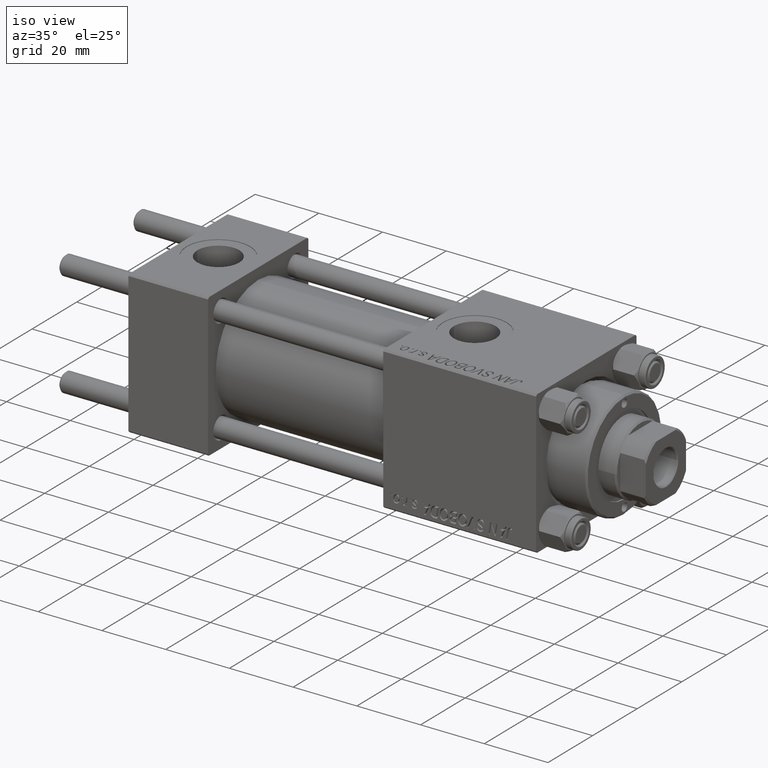
[diagram: clean part render]
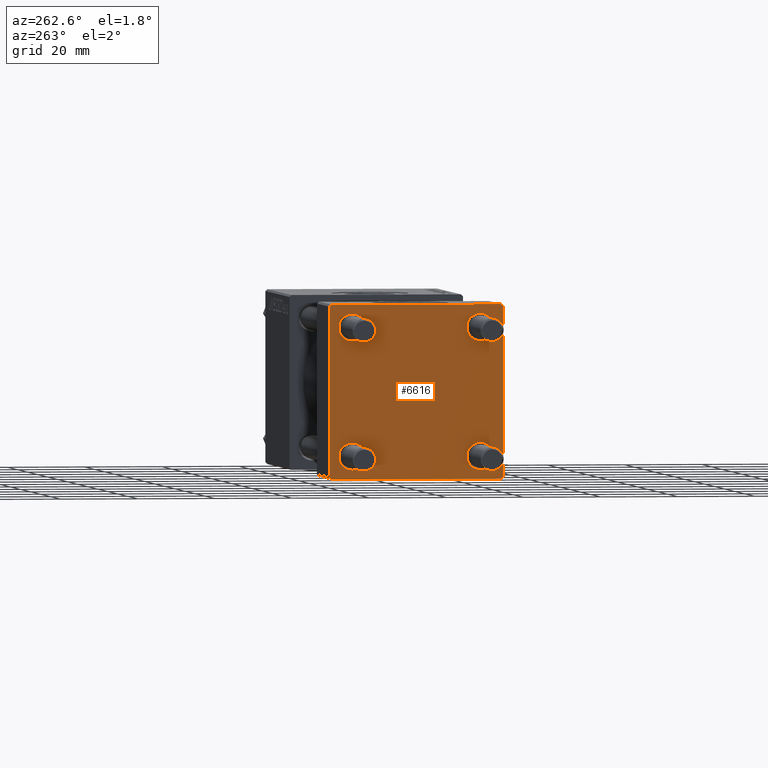
[diagram: tour spotlight — one face highlighted and labeled with its STEP entity id]
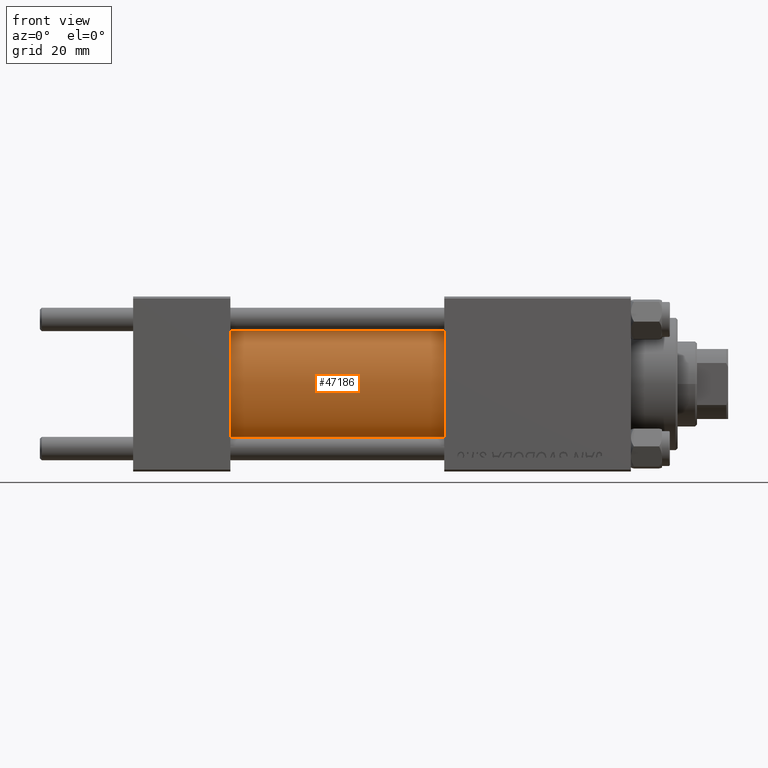
[diagram: tour spotlight — one face highlighted and labeled with its STEP entity id]
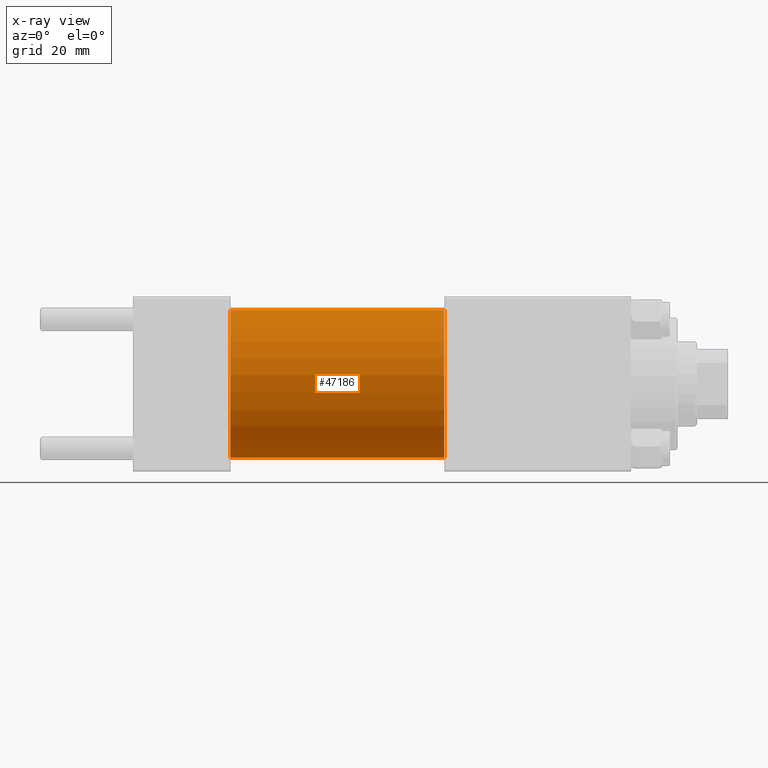
[diagram: x-ray of the same camera — body ghosted, this tour face saturated]
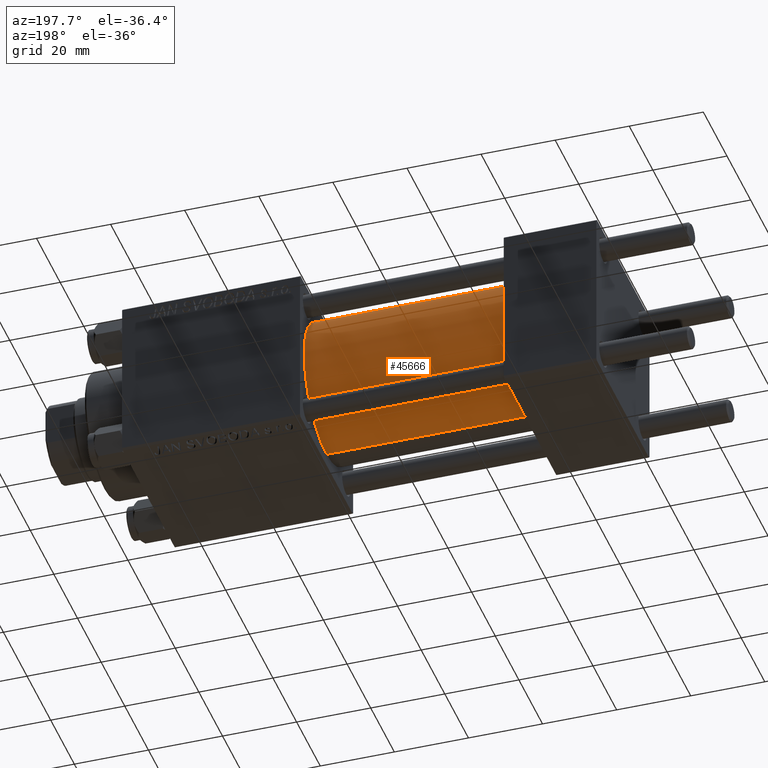
[diagram: tour spotlight — one face highlighted and labeled with its STEP entity id]
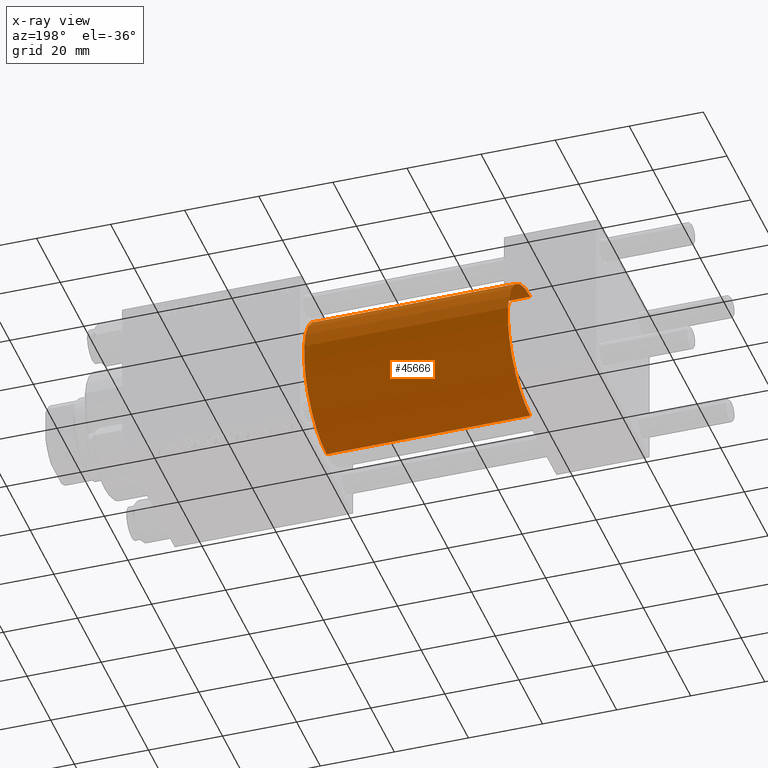
[diagram: x-ray of the same camera — body ghosted, this tour face saturated]
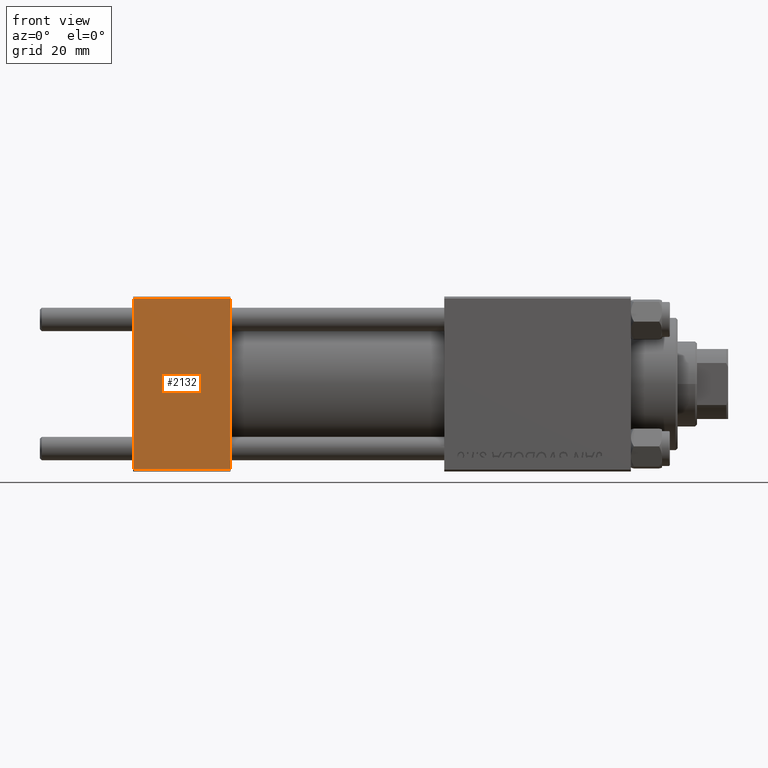
[diagram: tour spotlight — one face highlighted and labeled with its STEP entity id]
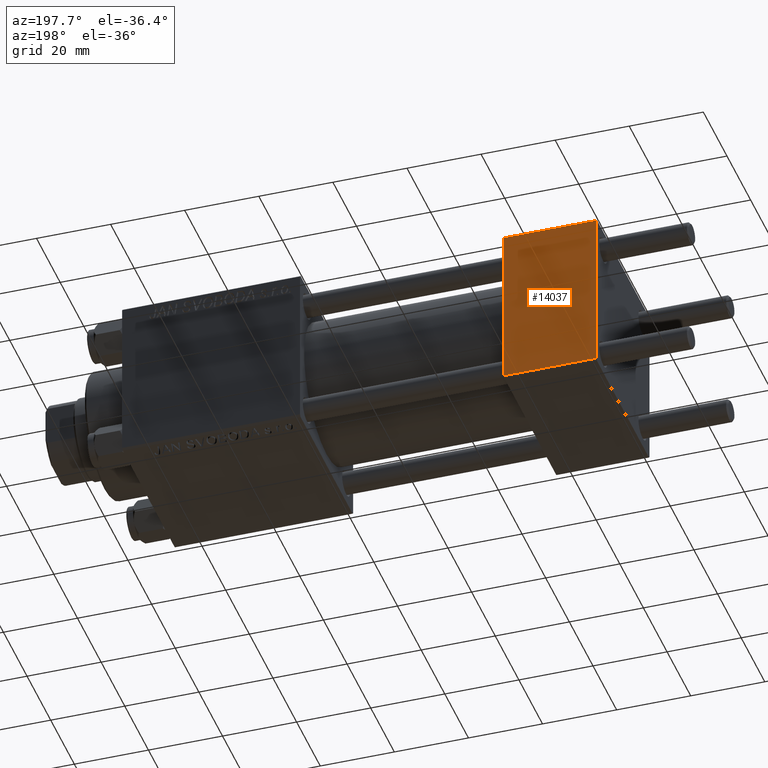
[diagram: tour spotlight — one face highlighted and labeled with its STEP entity id]
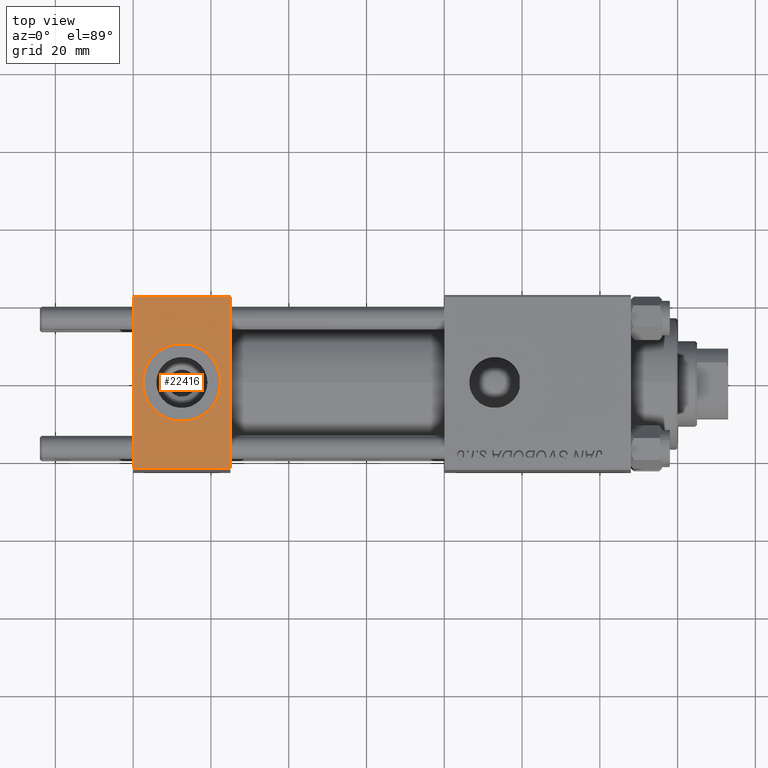
[diagram: tour spotlight — one face highlighted and labeled with its STEP entity id]
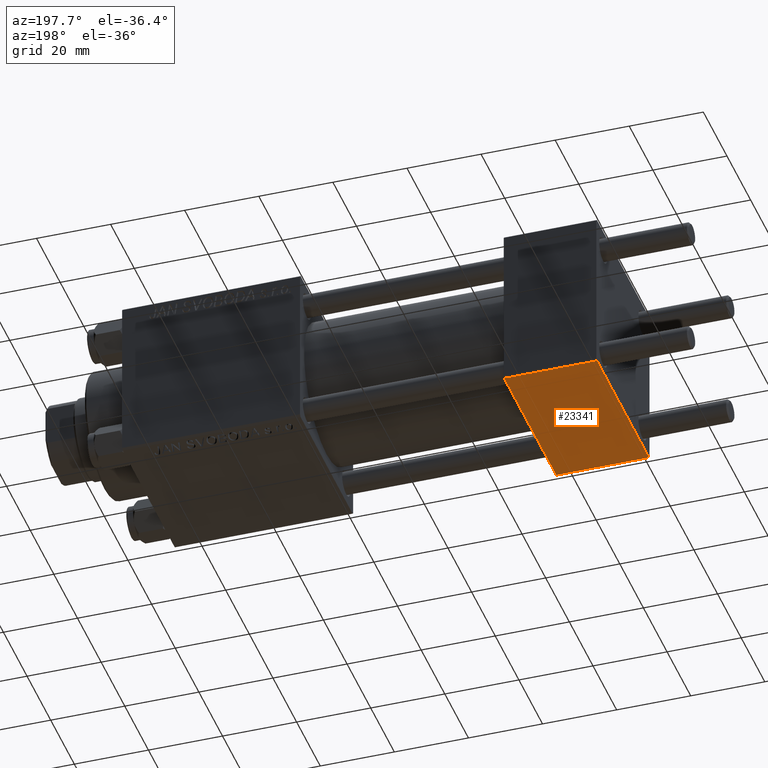
[diagram: tour spotlight — one face highlighted and labeled with its STEP entity id]
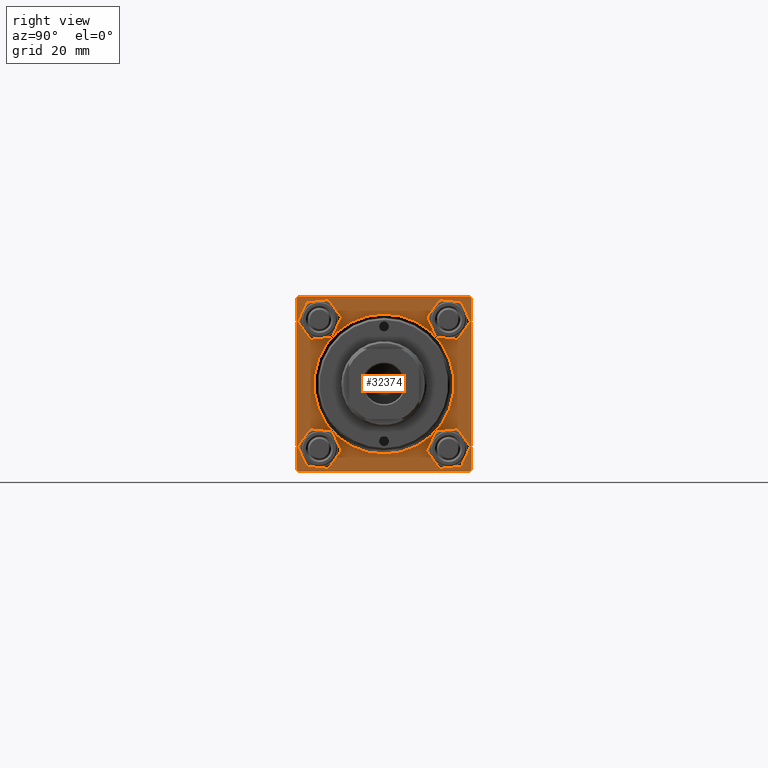
[diagram: tour spotlight — one face highlighted and labeled with its STEP entity id]
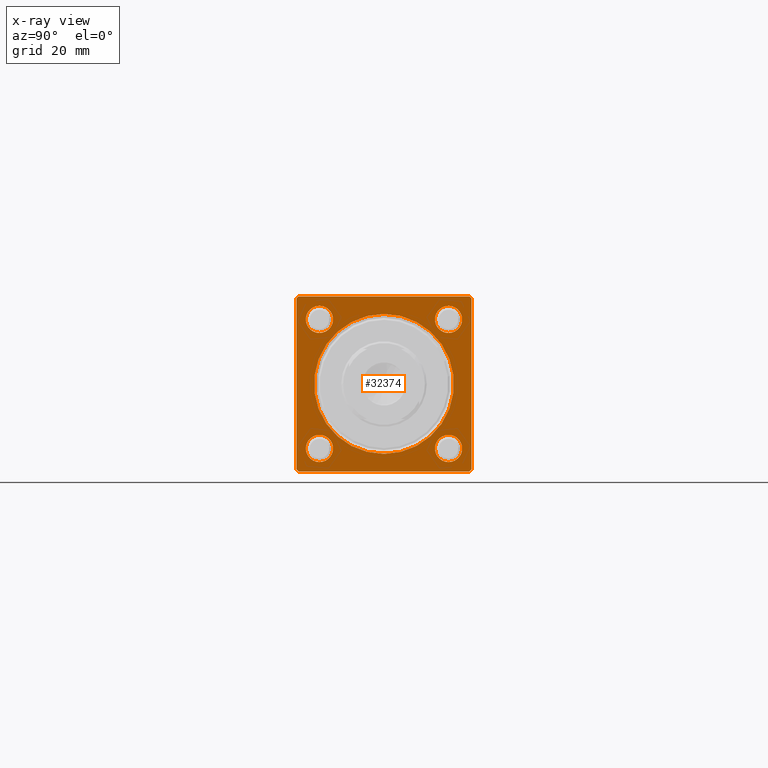
[diagram: x-ray of the same camera — body ghosted, this tour face saturated]
A machine part: a face-by-face anatomy tour. The part has 1139 B-rep faces; the first image is the clean iso view, then the 8 largest visible faces are spotlighted one at a time (largest first), each with its STEP entity span.

Face 1 — auxiliary view, entity #6616. In plain terms, the highlighted planar face has unit normal (-1, 0, 0).
Definition (entity closure, byte-faithful):
#53 = LINE ( 'NONE', #11431, #9206 ) ;
#274 = EDGE_LOOP ( 'NONE', ( #21866, #40406 ) ) ;
#479 = DIRECTION ( 'NONE',  ( -0.000000000000000000, -0.7071067811865426878, -0.7071067811865524577 ) ) ;
#663 = LINE ( 'NONE', #36029, #20480 ) ;
#1128 = FACE_BOUND ( 'NONE', #46462, .T. ) ;
#1495 = CIRCLE ( 'NONE', #6345, 3.499999999999996003 ) ;
#1721 = DIRECTION ( 'NONE',  ( 0.000000000000000000, 0.000000000000000000, 1.000000000000000000 ) ) ;
#1800 = CARTESIAN_POINT ( 'NONE',  ( 0.000000000000000000, 16.59999999999999787, -20.10000000000000142 ) ) ;
#1886 = DIRECTION ( 'NONE',  ( 0.000000000000000000, 0.000000000000000000, 1.000000000000000000 ) ) ;
#1978 = DIRECTION ( 'NONE',  ( 1.000000000000000000, -0.000000000000000000, 0.000000000000000000 ) ) ;
#2047 = DIRECTION ( 'NONE',  ( 0.000000000000000000, -1.000000000000000000, -7.709882115452476934E-17 ) ) ;
#2133 = FACE_OUTER_BOUND ( 'NONE', #25922, .T. ) ;
#2572 = DIRECTION ( 'NONE',  ( 0.000000000000000000, 0.000000000000000000, 1.000000000000000000 ) ) ;
#3045 = EDGE_CURVE ( 'NONE', #29026, #44008, #13752, .T. ) ;
#4224 = ORIENTED_EDGE ( 'NONE', *, *, #33535, .T. ) ;
#4450 = CIRCLE ( 'NONE', #38377, 3.499999999999996003 ) ;
#4647 = CIRCLE ( 'NONE', #23198, 3.499999999999996003 ) ;
#4648 = EDGE_CURVE ( 'NONE', #26051, #33854, #29609, .T. ) ;
#4755 = DIRECTION ( 'NONE',  ( 1.000000000000000000, -0.000000000000000000, 0.000000000000000000 ) ) ;
#4819 = ORIENTED_EDGE ( 'NONE', *, *, #3045, .T. ) ;
#5385 = EDGE_CURVE ( 'NONE', #38643, #41344, #39376, .T. ) ;
#5818 = CARTESIAN_POINT ( 'NONE',  ( 0.000000000000000000, -22.50000000000000000, 22.00000000000000000 ) ) ;
#5859 = CARTESIAN_POINT ( 'NONE',  ( 0.000000000000000000, -16.59999999999999076, 16.60000000000000853 ) ) ;
#6021 = DIRECTION ( 'NONE',  ( 0.000000000000000000, 0.000000000000000000, 1.000000000000000000 ) ) ;
#6345 = AXIS2_PLACEMENT_3D ( 'NONE', #5859, #18247, #2572 ) ;
#6616 = ADVANCED_FACE ( 'NONE', ( #9713, #21347, #1128, #36765, #2133 ), #36009, .T. ) ;
#6964 = CARTESIAN_POINT ( 'NONE',  ( -0.000000000000000000, -22.24999999999984013, 22.25000000000015277 ) ) ;
#7325 = LINE ( 'NONE', #35108, #7852 ) ;
#7505 = CARTESIAN_POINT ( 'NONE',  ( 0.000000000000000000, -21.99999999999997868, 22.50000000000000000 ) ) ;
#7687 = ORIENTED_EDGE ( 'NONE', *, *, #10547, .T. ) ;
#7769 = CARTESIAN_POINT ( 'NONE',  ( 0.000000000000000000, -22.50000000000000000, 22.50000000000000000 ) ) ;
#7852 = VECTOR ( 'NONE', #479, 1000.000000000000000 ) ;
#8849 = EDGE_LOOP ( 'NONE', ( #20058, #35106 ) ) ;
#9206 = VECTOR ( 'NONE', #49401, 1000.000000000000000 ) ;
#9295 = CARTESIAN_POINT ( 'NONE',  ( 0.000000000000000000, 16.59999999999999787, -16.60000000000000497 ) ) ;
#9496 = EDGE_CURVE ( 'NONE', #49570, #41344, #23219, .T. ) ;
#9584 = AXIS2_PLACEMENT_3D ( 'NONE', #37386, #10586, #11578 ) ;
#9713 = FACE_BOUND ( 'NONE', #8849, .T. ) ;
#10547 = EDGE_CURVE ( 'NONE', #40711, #13921, #7325, .T. ) ;
#10586 = DIRECTION ( 'NONE',  ( 1.000000000000000000, -0.000000000000000000, 0.000000000000000000 ) ) ;
#10751 = EDGE_CURVE ( 'NONE', #12525, #41818, #4647, .T. ) ;
#11397 = ORIENTED_EDGE ( 'NONE', *, *, #4648, .T. ) ;
#11431 = CARTESIAN_POINT ( 'NONE',  ( 0.000000000000000000, 22.50000000000000000, 22.50000000000000355 ) ) ;
#11578 = DIRECTION ( 'NONE',  ( 0.000000000000000000, 0.000000000000000000, 1.000000000000000000 ) ) ;
#12512 = CARTESIAN_POINT ( 'NONE',  ( 0.000000000000000000, 0.000000000000000000, 0.000000000000000000 ) ) ;
#12525 = VERTEX_POINT ( 'NONE', #33141 ) ;
#12661 = AXIS2_PLACEMENT_3D ( 'NONE', #12512, #16555, #47915 ) ;
#13513 = CARTESIAN_POINT ( 'NONE',  ( 0.000000000000000000, -16.59999999999999076, -16.60000000000000853 ) ) ;
#13572 = CARTESIAN_POINT ( 'NONE',  ( 0.000000000000000000, 16.59999999999999787, 20.10000000000000142 ) ) ;
#13752 = LINE ( 'NONE', #14254, #24678 ) ;
#13799 = DIRECTION ( 'NONE',  ( -0.000000000000000000, 0.7071067811865525687, 0.7071067811865425767 ) ) ;
#13921 = VERTEX_POINT ( 'NONE', #48039 ) ;
#14031 = EDGE_CURVE ( 'NONE', #42568, #26793, #42713, .T. ) ;
#14254 = CARTESIAN_POINT ( 'NONE',  ( 0.000000000000000000, 22.24999999999999645, 22.24999999999999645 ) ) ;
#14526 = ORIENTED_EDGE ( 'NONE', *, *, #16710, .F. ) ;
#14582 = ORIENTED_EDGE ( 'NONE', *, *, #46627, .T. ) ;
#14583 = EDGE_CURVE ( 'NONE', #34306, #19683, #1495, .T. ) ;
#15131 = DIRECTION ( 'NONE',  ( 0.000000000000000000, -0.7071067811865426878, 0.7071067811865524577 ) ) ;
#16107 = CARTESIAN_POINT ( 'NONE',  ( 0.000000000000000000, -21.99999999999997158, -22.50000000000000711 ) ) ;
#16555 = DIRECTION ( 'NONE',  ( -1.000000000000000000, 0.000000000000000000, -0.000000000000000000 ) ) ;
#16710 = EDGE_CURVE ( 'NONE', #29026, #40020, #29357, .T. ) ;
#17072 = DIRECTION ( 'NONE',  ( 0.000000000000000000, -1.000000000000000000, -2.312964634635742957E-16 ) ) ;
#18247 = DIRECTION ( 'NONE',  ( 1.000000000000000000, -0.000000000000000000, 0.000000000000000000 ) ) ;
#18824 = ORIENTED_EDGE ( 'NONE', *, *, #9496, .T. ) ;
#19683 = VERTEX_POINT ( 'NONE', #27972 ) ;
#19948 = VECTOR ( 'NONE', #15131, 1000.000000000000000 ) ;
#20058 = ORIENTED_EDGE ( 'NONE', *, *, #14583, .T. ) ;
#20080 = CARTESIAN_POINT ( 'NONE',  ( 0.000000000000000000, -16.59999999999999076, 16.60000000000000853 ) ) ;
#20303 = AXIS2_PLACEMENT_3D ( 'NONE', #28797, #43749, #25004 ) ;
#20480 = VECTOR ( 'NONE', #17072, 1000.000000000000000 ) ;
#20754 = EDGE_CURVE ( 'NONE', #19683, #34306, #30813, .T. ) ;
#20973 = EDGE_LOOP ( 'NONE', ( #38281, #11397 ) ) ;
#21037 = EDGE_CURVE ( 'NONE', #33854, #26051, #21088, .T. ) ;
#21088 = CIRCLE ( 'NONE', #20303, 3.499999999999996003 ) ;
#21347 = FACE_BOUND ( 'NONE', #20973, .T. ) ;
#21514 = CARTESIAN_POINT ( 'NONE',  ( 0.000000000000000000, 22.50000000000000000, 22.50000000000000355 ) ) ;
#21604 = CARTESIAN_POINT ( 'NONE',  ( 0.000000000000000000, -16.59999999999999076, -20.10000000000000497 ) ) ;
#21866 = ORIENTED_EDGE ( 'NONE', *, *, #45837, .T. ) ;
#22500 = ORIENTED_EDGE ( 'NONE', *, *, #22942, .T. ) ;
#22942 = EDGE_CURVE ( 'NONE', #41818, #12525, #4450, .T. ) ;
#22960 = DIRECTION ( 'NONE',  ( 0.000000000000000000, 0.000000000000000000, -1.000000000000000000 ) ) ;
#23198 = AXIS2_PLACEMENT_3D ( 'NONE', #29292, #1978, #6021 ) ;
#23219 = LINE ( 'NONE', #41456, #19948 ) ;
#24381 = DIRECTION ( 'NONE',  ( 0.000000000000000000, 0.000000000000000000, 1.000000000000000000 ) ) ;
#24678 = VECTOR ( 'NONE', #25384, 1000.000000000000114 ) ;
#24749 = VECTOR ( 'NONE', #22960, 1000.000000000000000 ) ;
#25004 = DIRECTION ( 'NONE',  ( 0.000000000000000000, 0.000000000000000000, 1.000000000000000000 ) ) ;
#25384 = DIRECTION ( 'NONE',  ( 0.000000000000000000, 0.7071067811865474617, -0.7071067811865474617 ) ) ;
#25922 = EDGE_LOOP ( 'NONE', ( #14582, #7687, #44398, #18824, #32550, #4224, #14526, #4819 ) ) ;
#26051 = VERTEX_POINT ( 'NONE', #21604 ) ;
#26793 = VERTEX_POINT ( 'NONE', #13572 ) ;
#27972 = CARTESIAN_POINT ( 'NONE',  ( 0.000000000000000000, -16.59999999999999076, 13.10000000000001030 ) ) ;
#28514 = CARTESIAN_POINT ( 'NONE',  ( 0.000000000000000000, 22.50000000000000000, 21.99999999999999645 ) ) ;
#28797 = CARTESIAN_POINT ( 'NONE',  ( 0.000000000000000000, -16.59999999999999076, -16.60000000000000853 ) ) ;
#29026 = VERTEX_POINT ( 'NONE', #36780 ) ;
#29292 = CARTESIAN_POINT ( 'NONE',  ( 0.000000000000000000, 16.59999999999999787, -16.60000000000000497 ) ) ;
#29357 = LINE ( 'NONE', #21514, #41147 ) ;
#29609 = CIRCLE ( 'NONE', #32003, 3.499999999999996003 ) ;
#30813 = CIRCLE ( 'NONE', #38074, 3.499999999999996003 ) ;
#30989 = AXIS2_PLACEMENT_3D ( 'NONE', #41362, #45415, #32747 ) ;
#31653 = CARTESIAN_POINT ( 'NONE',  ( 0.000000000000000000, 22.50000000000000000, -21.99999999999996803 ) ) ;
#32003 = AXIS2_PLACEMENT_3D ( 'NONE', #13513, #4755, #1886 ) ;
#32550 = ORIENTED_EDGE ( 'NONE', *, *, #5385, .F. ) ;
#32747 = DIRECTION ( 'NONE',  ( 0.000000000000000000, 0.000000000000000000, 1.000000000000000000 ) ) ;
#33141 = CARTESIAN_POINT ( 'NONE',  ( 0.000000000000000000, 16.59999999999999787, -13.10000000000000675 ) ) ;
#33535 = EDGE_CURVE ( 'NONE', #38643, #40020, #41613, .T. ) ;
#33854 = VERTEX_POINT ( 'NONE', #35496 ) ;
#34306 = VERTEX_POINT ( 'NONE', #35561 ) ;
#35106 = ORIENTED_EDGE ( 'NONE', *, *, #20754, .T. ) ;
#35108 = CARTESIAN_POINT ( 'NONE',  ( 0.000000000000000000, 22.25000000000014566, -22.24999999999984013 ) ) ;
#35496 = CARTESIAN_POINT ( 'NONE',  ( 0.000000000000000000, -16.59999999999999076, -13.10000000000001030 ) ) ;
#35561 = CARTESIAN_POINT ( 'NONE',  ( 0.000000000000000000, -16.59999999999999076, 20.10000000000000853 ) ) ;
#36009 = PLANE ( 'NONE',  #12661 ) ;
#36029 = CARTESIAN_POINT ( 'NONE',  ( 0.000000000000000000, 22.50000000000000000, -22.49999999999999645 ) ) ;
#36297 = CARTESIAN_POINT ( 'NONE',  ( 0.000000000000000000, -22.50000000000000000, -21.99999999999997158 ) ) ;
#36765 = FACE_BOUND ( 'NONE', #274, .T. ) ;
#36780 = CARTESIAN_POINT ( 'NONE',  ( 0.000000000000000000, 21.99999999999999289, 22.50000000000000355 ) ) ;
#37386 = CARTESIAN_POINT ( 'NONE',  ( 0.000000000000000000, 16.59999999999999787, 16.60000000000000497 ) ) ;
#38074 = AXIS2_PLACEMENT_3D ( 'NONE', #20080, #47161, #24381 ) ;
#38281 = ORIENTED_EDGE ( 'NONE', *, *, #21037, .T. ) ;
#38377 = AXIS2_PLACEMENT_3D ( 'NONE', #9295, #40909, #1721 ) ;
#38643 = VERTEX_POINT ( 'NONE', #5818 ) ;
#39376 = LINE ( 'NONE', #7769, #24749 ) ;
#40020 = VERTEX_POINT ( 'NONE', #7505 ) ;
#40406 = ORIENTED_EDGE ( 'NONE', *, *, #14031, .T. ) ;
#40711 = VERTEX_POINT ( 'NONE', #31653 ) ;
#40909 = DIRECTION ( 'NONE',  ( 1.000000000000000000, -0.000000000000000000, 0.000000000000000000 ) ) ;
#41147 = VECTOR ( 'NONE', #2047, 1000.000000000000000 ) ;
#41344 = VERTEX_POINT ( 'NONE', #36297 ) ;
#41362 = CARTESIAN_POINT ( 'NONE',  ( 0.000000000000000000, 16.59999999999999787, 16.60000000000000497 ) ) ;
#41456 = CARTESIAN_POINT ( 'NONE',  ( 0.000000000000000000, -22.25000000000014566, -22.24999999999984013 ) ) ;
#41613 = LINE ( 'NONE', #6964, #46940 ) ;
#41818 = VERTEX_POINT ( 'NONE', #1800 ) ;
#42306 = CIRCLE ( 'NONE', #30989, 3.499999999999996003 ) ;
#42568 = VERTEX_POINT ( 'NONE', #44434 ) ;
#42713 = CIRCLE ( 'NONE', #9584, 3.499999999999996003 ) ;
#43749 = DIRECTION ( 'NONE',  ( 1.000000000000000000, -0.000000000000000000, 0.000000000000000000 ) ) ;
#44008 = VERTEX_POINT ( 'NONE', #28514 ) ;
#44398 = ORIENTED_EDGE ( 'NONE', *, *, #44823, .T. ) ;
#44434 = CARTESIAN_POINT ( 'NONE',  ( 0.000000000000000000, 16.59999999999999787, 13.10000000000000675 ) ) ;
#44823 = EDGE_CURVE ( 'NONE', #13921, #49570, #663, .T. ) ;
#45415 = DIRECTION ( 'NONE',  ( 1.000000000000000000, -0.000000000000000000, 0.000000000000000000 ) ) ;
#45837 = EDGE_CURVE ( 'NONE', #26793, #42568, #42306, .T. ) ;
#46462 = EDGE_LOOP ( 'NONE', ( #46815, #22500 ) ) ;
#46627 = EDGE_CURVE ( 'NONE', #44008, #40711, #53, .T. ) ;
#46815 = ORIENTED_EDGE ( 'NONE', *, *, #10751, .T. ) ;
#46940 = VECTOR ( 'NONE', #13799, 999.9999999999998863 ) ;
#47161 = DIRECTION ( 'NONE',  ( 1.000000000000000000, -0.000000000000000000, 0.000000000000000000 ) ) ;
#47915 = DIRECTION ( 'NONE',  ( -0.000000000000000000, 0.000000000000000000, 1.000000000000000000 ) ) ;
#48039 = CARTESIAN_POINT ( 'NONE',  ( 0.000000000000000000, 21.99999999999999289, -22.49999999999999645 ) ) ;
#49401 = DIRECTION ( 'NONE',  ( 0.000000000000000000, 0.000000000000000000, -1.000000000000000000 ) ) ;
#49570 = VERTEX_POINT ( 'NONE', #16107 ) ;

Face 2 — front view, entity #47186. An x-ray twin of the same camera follows (body ghosted, this face saturated) — the face is partly hidden behind the body. In plain terms, the highlighted cylindrical surface (partial cylindrical patch) has radius 19 mm, axis along (-1, -0, -0).
Definition (entity closure, byte-faithful):
#1106 = DIRECTION ( 'NONE',  ( 0.000000000000000000, 0.000000000000000000, -1.000000000000000000 ) ) ;
#1856 = CARTESIAN_POINT ( 'NONE',  ( 80.00000000000000000, 0.000000000000000000, 0.000000000000000000 ) ) ;
#3260 = CARTESIAN_POINT ( 'NONE',  ( 25.00000000000000000, 0.000000000000000000, 0.000000000000000000 ) ) ;
#3726 = FACE_OUTER_BOUND ( 'NONE', #36854, .T. ) ;
#4688 = CIRCLE ( 'NONE', #7113, 19.00000000000000000 ) ;
#6553 = DIRECTION ( 'NONE',  ( 0.000000000000000000, 0.000000000000000000, 1.000000000000000000 ) ) ;
#7113 = AXIS2_PLACEMENT_3D ( 'NONE', #3260, #26774, #6553 ) ;
#7982 = VERTEX_POINT ( 'NONE', #32958 ) ;
#9686 = DIRECTION ( 'NONE',  ( 1.000000000000000000, 0.000000000000000000, 0.000000000000000000 ) ) ;
#11443 = EDGE_CURVE ( 'NONE', #7982, #12229, #23506, .T. ) ;
#12229 = VERTEX_POINT ( 'NONE', #45129 ) ;
#14337 = LINE ( 'NONE', #25467, #25144 ) ;
#15603 = CYLINDRICAL_SURFACE ( 'NONE', #49686, 19.00000000000000000 ) ;
#15917 = DIRECTION ( 'NONE',  ( -1.000000000000000000, -0.000000000000000000, -0.000000000000000000 ) ) ;
#19395 = CARTESIAN_POINT ( 'NONE',  ( 80.00000000000000000, 0.000000000000000000, 0.000000000000000000 ) ) ;
#20438 = VERTEX_POINT ( 'NONE', #45719 ) ;
#21276 = EDGE_CURVE ( 'NONE', #20438, #21613, #14337, .T. ) ;
#21613 = VERTEX_POINT ( 'NONE', #38965 ) ;
#23506 = LINE ( 'NONE', #38180, #23996 ) ;
#23996 = VECTOR ( 'NONE', #15917, 1000.000000000000000 ) ;
#24185 = DIRECTION ( 'NONE',  ( 0.000000000000000000, 0.000000000000000000, 1.000000000000000000 ) ) ;
#25144 = VECTOR ( 'NONE', #40892, 1000.000000000000000 ) ;
#25467 = CARTESIAN_POINT ( 'NONE',  ( 80.00000000000000000, 0.000000000000000000, 19.00000000000000000 ) ) ;
#26607 = ORIENTED_EDGE ( 'NONE', *, *, #11443, .F. ) ;
#26774 = DIRECTION ( 'NONE',  ( 1.000000000000000000, -0.000000000000000000, 0.000000000000000000 ) ) ;
#27444 = EDGE_CURVE ( 'NONE', #21613, #12229, #4688, .T. ) ;
#28845 = ORIENTED_EDGE ( 'NONE', *, *, #41619, .F. ) ;
#32842 = ORIENTED_EDGE ( 'NONE', *, *, #21276, .T. ) ;
#32958 = CARTESIAN_POINT ( 'NONE',  ( 80.00000000000000000, 2.326828918379970970E-15, -19.00000000000000000 ) ) ;
#34556 = DIRECTION ( 'NONE',  ( -1.000000000000000000, -0.000000000000000000, -0.000000000000000000 ) ) ;
#36346 = ORIENTED_EDGE ( 'NONE', *, *, #27444, .T. ) ;
#36854 = EDGE_LOOP ( 'NONE', ( #26607, #28845, #32842, #36346 ) ) ;
#38180 = CARTESIAN_POINT ( 'NONE',  ( 80.00000000000000000, 2.326828918379970970E-15, -19.00000000000000000 ) ) ;
#38965 = CARTESIAN_POINT ( 'NONE',  ( 25.00000000000000000, 0.000000000000000000, 19.00000000000000000 ) ) ;
#38970 = AXIS2_PLACEMENT_3D ( 'NONE', #1856, #9686, #1106 ) ;
#40892 = DIRECTION ( 'NONE',  ( -1.000000000000000000, -0.000000000000000000, -0.000000000000000000 ) ) ;
#41619 = EDGE_CURVE ( 'NONE', #20438, #7982, #47860, .T. ) ;
#45129 = CARTESIAN_POINT ( 'NONE',  ( 25.00000000000000000, 2.326828918379970970E-15, -19.00000000000000000 ) ) ;
#45719 = CARTESIAN_POINT ( 'NONE',  ( 80.00000000000000000, 0.000000000000000000, 19.00000000000000000 ) ) ;
#47186 = ADVANCED_FACE ( 'NONE', ( #3726 ), #15603, .T. ) ;
#47860 = CIRCLE ( 'NONE', #38970, 19.00000000000000000 ) ;
#49686 = AXIS2_PLACEMENT_3D ( 'NONE', #19395, #34556, #24185 ) ;

Face 3 — auxiliary view, entity #45666. An x-ray twin of the same camera follows (body ghosted, this face saturated) — the face is partly hidden behind the body. In plain terms, the highlighted cylindrical surface (partial cylindrical patch) has radius 19 mm, axis along (-1, -0, -0).
Definition (entity closure, byte-faithful):
#1045 = ORIENTED_EDGE ( 'NONE', *, *, #11443, .T. ) ;
#3211 = ORIENTED_EDGE ( 'NONE', *, *, #21276, .F. ) ;
#5449 = CYLINDRICAL_SURFACE ( 'NONE', #47968, 19.00000000000000000 ) ;
#7982 = VERTEX_POINT ( 'NONE', #32958 ) ;
#8199 = CARTESIAN_POINT ( 'NONE',  ( 25.00000000000000000, 0.000000000000000000, 0.000000000000000000 ) ) ;
#11443 = EDGE_CURVE ( 'NONE', #7982, #12229, #23506, .T. ) ;
#12229 = VERTEX_POINT ( 'NONE', #45129 ) ;
#12544 = FACE_OUTER_BOUND ( 'NONE', #50067, .T. ) ;
#14337 = LINE ( 'NONE', #25467, #25144 ) ;
#14658 = EDGE_CURVE ( 'NONE', #7982, #20438, #43511, .T. ) ;
#15407 = CIRCLE ( 'NONE', #33159, 19.00000000000000000 ) ;
#15917 = DIRECTION ( 'NONE',  ( -1.000000000000000000, -0.000000000000000000, -0.000000000000000000 ) ) ;
#18494 = DIRECTION ( 'NONE',  ( 1.000000000000000000, 0.000000000000000000, 0.000000000000000000 ) ) ;
#19831 = DIRECTION ( 'NONE',  ( 0.000000000000000000, 0.000000000000000000, 1.000000000000000000 ) ) ;
#20438 = VERTEX_POINT ( 'NONE', #45719 ) ;
#21276 = EDGE_CURVE ( 'NONE', #20438, #21613, #14337, .T. ) ;
#21613 = VERTEX_POINT ( 'NONE', #38965 ) ;
#23506 = LINE ( 'NONE', #38180, #23996 ) ;
#23633 = DIRECTION ( 'NONE',  ( 1.000000000000000000, -0.000000000000000000, 0.000000000000000000 ) ) ;
#23996 = VECTOR ( 'NONE', #15917, 1000.000000000000000 ) ;
#25144 = VECTOR ( 'NONE', #40892, 1000.000000000000000 ) ;
#25467 = CARTESIAN_POINT ( 'NONE',  ( 80.00000000000000000, 0.000000000000000000, 19.00000000000000000 ) ) ;
#28415 = ORIENTED_EDGE ( 'NONE', *, *, #14658, .F. ) ;
#32495 = CARTESIAN_POINT ( 'NONE',  ( 80.00000000000000000, 0.000000000000000000, 0.000000000000000000 ) ) ;
#32958 = CARTESIAN_POINT ( 'NONE',  ( 80.00000000000000000, 2.326828918379970970E-15, -19.00000000000000000 ) ) ;
#33159 = AXIS2_PLACEMENT_3D ( 'NONE', #8199, #23633, #19831 ) ;
#33658 = EDGE_CURVE ( 'NONE', #12229, #21613, #15407, .T. ) ;
#33902 = DIRECTION ( 'NONE',  ( 0.000000000000000000, 0.000000000000000000, -1.000000000000000000 ) ) ;
#34361 = ORIENTED_EDGE ( 'NONE', *, *, #33658, .T. ) ;
#36213 = AXIS2_PLACEMENT_3D ( 'NONE', #37700, #18494, #33902 ) ;
#37700 = CARTESIAN_POINT ( 'NONE',  ( 80.00000000000000000, 0.000000000000000000, 0.000000000000000000 ) ) ;
#38180 = CARTESIAN_POINT ( 'NONE',  ( 80.00000000000000000, 2.326828918379970970E-15, -19.00000000000000000 ) ) ;
#38965 = CARTESIAN_POINT ( 'NONE',  ( 25.00000000000000000, 0.000000000000000000, 19.00000000000000000 ) ) ;
#40892 = DIRECTION ( 'NONE',  ( -1.000000000000000000, -0.000000000000000000, -0.000000000000000000 ) ) ;
#43167 = DIRECTION ( 'NONE',  ( 0.000000000000000000, 0.000000000000000000, 1.000000000000000000 ) ) ;
#43511 = CIRCLE ( 'NONE', #36213, 19.00000000000000000 ) ;
#45129 = CARTESIAN_POINT ( 'NONE',  ( 25.00000000000000000, 2.326828918379970970E-15, -19.00000000000000000 ) ) ;
#45666 = ADVANCED_FACE ( 'NONE', ( #12544 ), #5449, .T. ) ;
#45719 = CARTESIAN_POINT ( 'NONE',  ( 80.00000000000000000, 0.000000000000000000, 19.00000000000000000 ) ) ;
#47945 = DIRECTION ( 'NONE',  ( -1.000000000000000000, -0.000000000000000000, -0.000000000000000000 ) ) ;
#47968 = AXIS2_PLACEMENT_3D ( 'NONE', #32495, #47945, #43167 ) ;
#50067 = EDGE_LOOP ( 'NONE', ( #28415, #1045, #34361, #3211 ) ) ;

Face 4 — front view, entity #2132. In plain terms, the highlighted planar face has unit normal (0, 1, 0).
Definition (entity closure, byte-faithful):
#1179 = LINE ( 'NONE', #31536, #30201 ) ;
#1496 = EDGE_CURVE ( 'NONE', #47690, #44653, #28643, .T. ) ;
#2132 = ADVANCED_FACE ( 'NONE', ( #18090 ), #2661, .F. ) ;
#2661 = PLANE ( 'NONE',  #23069 ) ;
#3197 = ORIENTED_EDGE ( 'NONE', *, *, #48288, .T. ) ;
#5385 = EDGE_CURVE ( 'NONE', #38643, #41344, #39376, .T. ) ;
#5818 = CARTESIAN_POINT ( 'NONE',  ( 0.000000000000000000, -22.50000000000000000, 22.00000000000000000 ) ) ;
#7769 = CARTESIAN_POINT ( 'NONE',  ( 0.000000000000000000, -22.50000000000000000, 22.50000000000000000 ) ) ;
#10236 = CARTESIAN_POINT ( 'NONE',  ( 25.00000000000000000, -22.50000000000000000, 22.50000000000000000 ) ) ;
#11366 = ORIENTED_EDGE ( 'NONE', *, *, #28534, .T. ) ;
#13784 = DIRECTION ( 'NONE',  ( -0.000000000000000000, 1.000000000000000000, 0.000000000000000000 ) ) ;
#17903 = CARTESIAN_POINT ( 'NONE',  ( 25.00000000000000000, -22.50000000000000000, -21.99999999999997158 ) ) ;
#18090 = FACE_OUTER_BOUND ( 'NONE', #30694, .T. ) ;
#18198 = LINE ( 'NONE', #26783, #48353 ) ;
#18334 = DIRECTION ( 'NONE',  ( 0.000000000000000000, -0.000000000000000000, 1.000000000000000000 ) ) ;
#22960 = DIRECTION ( 'NONE',  ( 0.000000000000000000, 0.000000000000000000, -1.000000000000000000 ) ) ;
#23069 = AXIS2_PLACEMENT_3D ( 'NONE', #10236, #13784, #18334 ) ;
#24749 = VECTOR ( 'NONE', #22960, 1000.000000000000000 ) ;
#26783 = CARTESIAN_POINT ( 'NONE',  ( 25.00000000000000000, -22.50000000000000000, 22.00000000000000000 ) ) ;
#28534 = EDGE_CURVE ( 'NONE', #47690, #38643, #18198, .T. ) ;
#28605 = CARTESIAN_POINT ( 'NONE',  ( 25.00000000000000000, -22.50000000000000000, 22.00000000000000000 ) ) ;
#28643 = LINE ( 'NONE', #43094, #42424 ) ;
#30201 = VECTOR ( 'NONE', #38624, 1000.000000000000000 ) ;
#30694 = EDGE_LOOP ( 'NONE', ( #49753, #3197, #31055, #11366 ) ) ;
#31055 = ORIENTED_EDGE ( 'NONE', *, *, #1496, .F. ) ;
#31536 = CARTESIAN_POINT ( 'NONE',  ( 25.00000000000000000, -22.50000000000000000, -21.99999999999998579 ) ) ;
#36214 = DIRECTION ( 'NONE',  ( 0.000000000000000000, 0.000000000000000000, -1.000000000000000000 ) ) ;
#36297 = CARTESIAN_POINT ( 'NONE',  ( 0.000000000000000000, -22.50000000000000000, -21.99999999999997158 ) ) ;
#38624 = DIRECTION ( 'NONE',  ( 1.000000000000000000, 0.000000000000000000, 0.000000000000000000 ) ) ;
#38643 = VERTEX_POINT ( 'NONE', #5818 ) ;
#39376 = LINE ( 'NONE', #7769, #24749 ) ;
#41344 = VERTEX_POINT ( 'NONE', #36297 ) ;
#42424 = VECTOR ( 'NONE', #36214, 1000.000000000000000 ) ;
#43094 = CARTESIAN_POINT ( 'NONE',  ( 25.00000000000000000, -22.50000000000000000, 22.50000000000000000 ) ) ;
#44653 = VERTEX_POINT ( 'NONE', #17903 ) ;
#46260 = DIRECTION ( 'NONE',  ( -1.000000000000000000, 0.000000000000000000, 0.000000000000000000 ) ) ;
#47690 = VERTEX_POINT ( 'NONE', #28605 ) ;
#48288 = EDGE_CURVE ( 'NONE', #41344, #44653, #1179, .T. ) ;
#48353 = VECTOR ( 'NONE', #46260, 1000.000000000000000 ) ;
#49753 = ORIENTED_EDGE ( 'NONE', *, *, #5385, .T. ) ;

Face 5 — auxiliary view, entity #14037. In plain terms, the highlighted planar face has unit normal (0, 1, 0).
Definition (entity closure, byte-faithful):
#53 = LINE ( 'NONE', #11431, #9206 ) ;
#4919 = LINE ( 'NONE', #38816, #22222 ) ;
#5228 = CARTESIAN_POINT ( 'NONE',  ( 25.00000000000000000, 22.50000000000000000, -21.99999999999996803 ) ) ;
#5627 = VERTEX_POINT ( 'NONE', #5228 ) ;
#7042 = FACE_OUTER_BOUND ( 'NONE', #14226, .T. ) ;
#9206 = VECTOR ( 'NONE', #49401, 1000.000000000000000 ) ;
#10242 = CARTESIAN_POINT ( 'NONE',  ( 25.00000000000000000, 22.50000000000000000, 22.50000000000000355 ) ) ;
#10831 = DIRECTION ( 'NONE',  ( 0.000000000000000000, -0.000000000000000000, 1.000000000000000000 ) ) ;
#11431 = CARTESIAN_POINT ( 'NONE',  ( 0.000000000000000000, 22.50000000000000000, 22.50000000000000355 ) ) ;
#13535 = DIRECTION ( 'NONE',  ( 0.000000000000000000, 0.000000000000000000, -1.000000000000000000 ) ) ;
#14037 = ADVANCED_FACE ( 'NONE', ( #7042 ), #49302, .T. ) ;
#14226 = EDGE_LOOP ( 'NONE', ( #38790, #21594, #46088, #17333 ) ) ;
#17090 = VECTOR ( 'NONE', #37039, 1000.000000000000000 ) ;
#17333 = ORIENTED_EDGE ( 'NONE', *, *, #48579, .T. ) ;
#18221 = VERTEX_POINT ( 'NONE', #41880 ) ;
#21594 = ORIENTED_EDGE ( 'NONE', *, *, #39403, .T. ) ;
#21624 = CARTESIAN_POINT ( 'NONE',  ( 25.00000000000000000, 22.50000000000000000, -21.99999999999998224 ) ) ;
#22222 = VECTOR ( 'NONE', #26941, 1000.000000000000000 ) ;
#22963 = CARTESIAN_POINT ( 'NONE',  ( 25.00000000000000000, 22.50000000000000000, 22.50000000000000355 ) ) ;
#26941 = DIRECTION ( 'NONE',  ( 1.000000000000000000, 0.000000000000000000, 0.000000000000000000 ) ) ;
#27357 = AXIS2_PLACEMENT_3D ( 'NONE', #22963, #30057, #10831 ) ;
#28514 = CARTESIAN_POINT ( 'NONE',  ( 0.000000000000000000, 22.50000000000000000, 21.99999999999999645 ) ) ;
#30057 = DIRECTION ( 'NONE',  ( -0.000000000000000000, 1.000000000000000000, 0.000000000000000000 ) ) ;
#30387 = LINE ( 'NONE', #21624, #17090 ) ;
#31653 = CARTESIAN_POINT ( 'NONE',  ( 0.000000000000000000, 22.50000000000000000, -21.99999999999996803 ) ) ;
#32715 = EDGE_CURVE ( 'NONE', #18221, #5627, #48957, .T. ) ;
#37039 = DIRECTION ( 'NONE',  ( -1.000000000000000000, 0.000000000000000000, 0.000000000000000000 ) ) ;
#37171 = VECTOR ( 'NONE', #13535, 1000.000000000000000 ) ;
#38790 = ORIENTED_EDGE ( 'NONE', *, *, #32715, .T. ) ;
#38816 = CARTESIAN_POINT ( 'NONE',  ( 25.00000000000000000, 22.50000000000000000, 21.99999999999999645 ) ) ;
#39403 = EDGE_CURVE ( 'NONE', #5627, #40711, #30387, .T. ) ;
#40711 = VERTEX_POINT ( 'NONE', #31653 ) ;
#41880 = CARTESIAN_POINT ( 'NONE',  ( 25.00000000000000000, 22.50000000000000000, 21.99999999999999645 ) ) ;
#44008 = VERTEX_POINT ( 'NONE', #28514 ) ;
#46088 = ORIENTED_EDGE ( 'NONE', *, *, #46627, .F. ) ;
#46627 = EDGE_CURVE ( 'NONE', #44008, #40711, #53, .T. ) ;
#48579 = EDGE_CURVE ( 'NONE', #44008, #18221, #4919, .T. ) ;
#48957 = LINE ( 'NONE', #10242, #37171 ) ;
#49302 = PLANE ( 'NONE',  #27357 ) ;
#49401 = DIRECTION ( 'NONE',  ( 0.000000000000000000, 0.000000000000000000, -1.000000000000000000 ) ) ;

Face 6 — top view, entity #22416. In plain terms, the highlighted planar face has unit normal (0, 0, -1).
Definition (entity closure, byte-faithful):
#1175 = DIRECTION ( 'NONE',  ( -1.000000000000000000, 0.000000000000000000, 0.000000000000000000 ) ) ;
#1200 = ORIENTED_EDGE ( 'NONE', *, *, #37600, .F. ) ;
#2047 = DIRECTION ( 'NONE',  ( 0.000000000000000000, -1.000000000000000000, -7.709882115452476934E-17 ) ) ;
#2571 = EDGE_LOOP ( 'NONE', ( #26465, #21103, #1200, #28817 ) ) ;
#3154 = FACE_BOUND ( 'NONE', #25738, .T. ) ;
#3258 = LINE ( 'NONE', #15128, #33046 ) ;
#5684 = VECTOR ( 'NONE', #32109, 1000.000000000000000 ) ;
#5736 = CARTESIAN_POINT ( 'NONE',  ( 22.50000000000000000, -1.734723475976807094E-15, 22.50000000000000000 ) ) ;
#5862 = DIRECTION ( 'NONE',  ( 1.000000000000000000, 0.000000000000000000, 0.000000000000000000 ) ) ;
#6614 = DIRECTION ( 'NONE',  ( 0.000000000000000000, 0.000000000000000000, 1.000000000000000000 ) ) ;
#7505 = CARTESIAN_POINT ( 'NONE',  ( 0.000000000000000000, -21.99999999999997868, 22.50000000000000000 ) ) ;
#8609 = AXIS2_PLACEMENT_3D ( 'NONE', #14201, #6614, #5862 ) ;
#9096 = EDGE_CURVE ( 'NONE', #40771, #37154, #21542, .T. ) ;
#10983 = PLANE ( 'NONE',  #32547 ) ;
#12392 = ORIENTED_EDGE ( 'NONE', *, *, #20818, .F. ) ;
#13583 = VERTEX_POINT ( 'NONE', #48858 ) ;
#14201 = CARTESIAN_POINT ( 'NONE',  ( 12.50000000000000000, -1.734723475976807094E-15, 22.50000000000000000 ) ) ;
#14637 = AXIS2_PLACEMENT_3D ( 'NONE', #40041, #27678, #16291 ) ;
#15024 = EDGE_CURVE ( 'NONE', #40020, #21171, #3258, .T. ) ;
#15128 = CARTESIAN_POINT ( 'NONE',  ( 25.00000000000000000, -21.99999999999999289, 22.50000000000000000 ) ) ;
#16291 = DIRECTION ( 'NONE',  ( 1.000000000000000000, 0.000000000000000000, 0.000000000000000000 ) ) ;
#16710 = EDGE_CURVE ( 'NONE', #29026, #40020, #29357, .T. ) ;
#19735 = CARTESIAN_POINT ( 'NONE',  ( 25.00000000000000000, 22.50000000000000000, 22.50000000000000355 ) ) ;
#20230 = LINE ( 'NONE', #19735, #5684 ) ;
#20388 = LINE ( 'NONE', #35807, #26635 ) ;
#20818 = EDGE_CURVE ( 'NONE', #37154, #40771, #46173, .T. ) ;
#21103 = ORIENTED_EDGE ( 'NONE', *, *, #15024, .T. ) ;
#21171 = VERTEX_POINT ( 'NONE', #32297 ) ;
#21514 = CARTESIAN_POINT ( 'NONE',  ( 0.000000000000000000, 22.50000000000000000, 22.50000000000000355 ) ) ;
#21542 = CIRCLE ( 'NONE', #8609, 9.999999999999998224 ) ;
#21702 = CARTESIAN_POINT ( 'NONE',  ( 2.500000000000003997, -5.100766768294543310E-16, 22.50000000000000000 ) ) ;
#22416 = ADVANCED_FACE ( 'NONE', ( #3154, #33492 ), #10983, .F. ) ;
#25738 = EDGE_LOOP ( 'NONE', ( #12392, #33250 ) ) ;
#26465 = ORIENTED_EDGE ( 'NONE', *, *, #16710, .T. ) ;
#26635 = VECTOR ( 'NONE', #1175, 1000.000000000000000 ) ;
#27678 = DIRECTION ( 'NONE',  ( 0.000000000000000000, 0.000000000000000000, 1.000000000000000000 ) ) ;
#28817 = ORIENTED_EDGE ( 'NONE', *, *, #34501, .T. ) ;
#29026 = VERTEX_POINT ( 'NONE', #36780 ) ;
#29357 = LINE ( 'NONE', #21514, #41147 ) ;
#32109 = DIRECTION ( 'NONE',  ( 0.000000000000000000, -1.000000000000000000, -7.709882115452476934E-17 ) ) ;
#32297 = CARTESIAN_POINT ( 'NONE',  ( 25.00000000000000000, -21.99999999999997868, 22.50000000000000000 ) ) ;
#32547 = AXIS2_PLACEMENT_3D ( 'NONE', #48950, #37293, #41846 ) ;
#33046 = VECTOR ( 'NONE', #46248, 1000.000000000000000 ) ;
#33250 = ORIENTED_EDGE ( 'NONE', *, *, #9096, .F. ) ;
#33492 = FACE_OUTER_BOUND ( 'NONE', #2571, .T. ) ;
#34501 = EDGE_CURVE ( 'NONE', #13583, #29026, #20388, .T. ) ;
#35807 = CARTESIAN_POINT ( 'NONE',  ( 0.000000000000000000, 21.99999999999999289, 22.50000000000000355 ) ) ;
#36780 = CARTESIAN_POINT ( 'NONE',  ( 0.000000000000000000, 21.99999999999999289, 22.50000000000000355 ) ) ;
#37154 = VERTEX_POINT ( 'NONE', #5736 ) ;
#37293 = DIRECTION ( 'NONE',  ( 0.000000000000000000, 7.709882115452476934E-17, -1.000000000000000000 ) ) ;
#37600 = EDGE_CURVE ( 'NONE', #13583, #21171, #20230, .T. ) ;
#40020 = VERTEX_POINT ( 'NONE', #7505 ) ;
#40041 = CARTESIAN_POINT ( 'NONE',  ( 12.50000000000000000, -1.734723475976807094E-15, 22.50000000000000000 ) ) ;
#40771 = VERTEX_POINT ( 'NONE', #21702 ) ;
#41147 = VECTOR ( 'NONE', #2047, 1000.000000000000000 ) ;
#41846 = DIRECTION ( 'NONE',  ( 0.000000000000000000, 1.000000000000000000, 7.709882115452476934E-17 ) ) ;
#46173 = CIRCLE ( 'NONE', #14637, 9.999999999999998224 ) ;
#46248 = DIRECTION ( 'NONE',  ( 1.000000000000000000, 0.000000000000000000, 0.000000000000000000 ) ) ;
#48858 = CARTESIAN_POINT ( 'NONE',  ( 25.00000000000000000, 21.99999999999999289, 22.50000000000000355 ) ) ;
#48950 = CARTESIAN_POINT ( 'NONE',  ( 25.00000000000000000, 22.50000000000000000, 22.50000000000000355 ) ) ;

Face 7 — auxiliary view, entity #23341. In plain terms, the highlighted planar face has unit normal (0, 0, -1).
Definition (entity closure, byte-faithful):
#247 = EDGE_CURVE ( 'NONE', #13921, #2472, #1950, .T. ) ;
#663 = LINE ( 'NONE', #36029, #20480 ) ;
#898 = ORIENTED_EDGE ( 'NONE', *, *, #28472, .T. ) ;
#1950 = LINE ( 'NONE', #40380, #32688 ) ;
#2472 = VERTEX_POINT ( 'NONE', #47042 ) ;
#3019 = CARTESIAN_POINT ( 'NONE',  ( 25.00000000000000000, 22.50000000000000000, -22.49999999999999645 ) ) ;
#3204 = ORIENTED_EDGE ( 'NONE', *, *, #44823, .F. ) ;
#3791 = AXIS2_PLACEMENT_3D ( 'NONE', #37303, #14293, #41856 ) ;
#13921 = VERTEX_POINT ( 'NONE', #48039 ) ;
#14293 = DIRECTION ( 'NONE',  ( 0.000000000000000000, 2.312964634635742957E-16, -1.000000000000000000 ) ) ;
#15838 = ORIENTED_EDGE ( 'NONE', *, *, #247, .T. ) ;
#16107 = CARTESIAN_POINT ( 'NONE',  ( 0.000000000000000000, -21.99999999999997158, -22.50000000000000711 ) ) ;
#17072 = DIRECTION ( 'NONE',  ( 0.000000000000000000, -1.000000000000000000, -2.312964634635742957E-16 ) ) ;
#17655 = VECTOR ( 'NONE', #19188, 1000.000000000000000 ) ;
#18344 = VECTOR ( 'NONE', #31973, 1000.000000000000000 ) ;
#19188 = DIRECTION ( 'NONE',  ( 0.000000000000000000, -1.000000000000000000, -2.312964634635742957E-16 ) ) ;
#20480 = VECTOR ( 'NONE', #17072, 1000.000000000000000 ) ;
#23341 = ADVANCED_FACE ( 'NONE', ( #34002 ), #45902, .T. ) ;
#23401 = CARTESIAN_POINT ( 'NONE',  ( 0.000000000000000000, -21.99999999999998579, -22.50000000000000711 ) ) ;
#25049 = EDGE_CURVE ( 'NONE', #27347, #49570, #35012, .T. ) ;
#27347 = VERTEX_POINT ( 'NONE', #48305 ) ;
#27822 = ORIENTED_EDGE ( 'NONE', *, *, #25049, .T. ) ;
#28472 = EDGE_CURVE ( 'NONE', #2472, #27347, #37904, .T. ) ;
#31973 = DIRECTION ( 'NONE',  ( -1.000000000000000000, 0.000000000000000000, 0.000000000000000000 ) ) ;
#32688 = VECTOR ( 'NONE', #39390, 1000.000000000000000 ) ;
#34002 = FACE_OUTER_BOUND ( 'NONE', #34101, .T. ) ;
#34101 = EDGE_LOOP ( 'NONE', ( #3204, #15838, #898, #27822 ) ) ;
#35012 = LINE ( 'NONE', #23401, #18344 ) ;
#36029 = CARTESIAN_POINT ( 'NONE',  ( 0.000000000000000000, 22.50000000000000000, -22.49999999999999645 ) ) ;
#37303 = CARTESIAN_POINT ( 'NONE',  ( 25.00000000000000000, 22.50000000000000000, -22.49999999999999645 ) ) ;
#37904 = LINE ( 'NONE', #3019, #17655 ) ;
#39390 = DIRECTION ( 'NONE',  ( 1.000000000000000000, 0.000000000000000000, 0.000000000000000000 ) ) ;
#40380 = CARTESIAN_POINT ( 'NONE',  ( 25.00000000000000000, 21.99999999999999289, -22.49999999999999645 ) ) ;
#41856 = DIRECTION ( 'NONE',  ( 0.000000000000000000, 1.000000000000000000, 2.312964634635742957E-16 ) ) ;
#44823 = EDGE_CURVE ( 'NONE', #13921, #49570, #663, .T. ) ;
#45902 = PLANE ( 'NONE',  #3791 ) ;
#47042 = CARTESIAN_POINT ( 'NONE',  ( 25.00000000000000000, 21.99999999999999289, -22.49999999999999645 ) ) ;
#48039 = CARTESIAN_POINT ( 'NONE',  ( 0.000000000000000000, 21.99999999999999289, -22.49999999999999645 ) ) ;
#48305 = CARTESIAN_POINT ( 'NONE',  ( 25.00000000000000000, -21.99999999999997158, -22.50000000000000711 ) ) ;
#49570 = VERTEX_POINT ( 'NONE', #16107 ) ;

Face 8 — right view, entity #32374. An x-ray twin of the same camera follows (body ghosted, this face saturated) — the face is partly hidden behind the body. In plain terms, the highlighted planar face has unit normal (-1, 0, 0).
Definition (entity closure, byte-faithful):
#732 = EDGE_CURVE ( 'NONE', #16268, #45397, #38776, .T. ) ;
#827 = AXIS2_PLACEMENT_3D ( 'NONE', #6788, #18678, #34079 ) ;
#930 = LINE ( 'NONE', #4978, #41184 ) ;
#973 = ORIENTED_EDGE ( 'NONE', *, *, #47492, .T. ) ;
#1075 = EDGE_CURVE ( 'NONE', #5518, #47629, #25447, .T. ) ;
#1258 = DIRECTION ( 'NONE',  ( -1.000000000000000000, 0.000000000000000000, -0.000000000000000000 ) ) ;
#1399 = CARTESIAN_POINT ( 'NONE',  ( 128.0000000000000000, 22.50000000000000355, -21.99999999999996803 ) ) ;
#1432 = CIRCLE ( 'NONE', #21621, 3.500000000000044853 ) ;
#1634 = CIRCLE ( 'NONE', #41220, 3.500000000000044853 ) ;
#2005 = AXIS2_PLACEMENT_3D ( 'NONE', #34935, #42302, #19028 ) ;
#2097 = ORIENTED_EDGE ( 'NONE', *, *, #41844, .T. ) ;
#2342 = ORIENTED_EDGE ( 'NONE', *, *, #46252, .T. ) ;
#2664 = CIRCLE ( 'NONE', #30130, 3.500000000000044853 ) ;
#3095 = VECTOR ( 'NONE', #24625, 1000.000000000000000 ) ;
#3133 = EDGE_CURVE ( 'NONE', #5302, #40724, #4510, .T. ) ;
#3247 = FACE_BOUND ( 'NONE', #42396, .T. ) ;
#3847 = ORIENTED_EDGE ( 'NONE', *, *, #18145, .T. ) ;
#4269 = EDGE_CURVE ( 'NONE', #20527, #48072, #17465, .T. ) ;
#4270 = ORIENTED_EDGE ( 'NONE', *, *, #732, .T. ) ;
#4510 = CIRCLE ( 'NONE', #17427, 3.500000000000044853 ) ;
#4668 = LINE ( 'NONE', #12990, #3095 ) ;
#4725 = DIRECTION ( 'NONE',  ( 0.000000000000000000, 0.000000000000000000, -1.000000000000000000 ) ) ;
#4978 = CARTESIAN_POINT ( 'NONE',  ( 128.0000000000000000, 22.50000000000000355, 22.50000000000000355 ) ) ;
#5302 = VERTEX_POINT ( 'NONE', #14867 ) ;
#5309 = CARTESIAN_POINT ( 'NONE',  ( 128.0000000000000000, 22.50000000000000355, -22.49999999999999645 ) ) ;
#5518 = VERTEX_POINT ( 'NONE', #21154 ) ;
#5588 = DIRECTION ( 'NONE',  ( -1.000000000000000000, 0.000000000000000000, -0.000000000000000000 ) ) ;
#6504 = LINE ( 'NONE', #40650, #11569 ) ;
#6574 = EDGE_LOOP ( 'NONE', ( #22441, #28953 ) ) ;
#6685 = VERTEX_POINT ( 'NONE', #22353 ) ;
#6730 = CARTESIAN_POINT ( 'NONE',  ( 128.0000000000000000, -16.59999999999999076, 16.60000000000000853 ) ) ;
#6788 = CARTESIAN_POINT ( 'NONE',  ( 128.0000000000000000, 0.000000000000000000, 0.000000000000000000 ) ) ;
#6806 = CIRCLE ( 'NONE', #35054, 18.00000000000004263 ) ;
#7000 = DIRECTION ( 'NONE',  ( -1.000000000000000000, 0.000000000000000000, -0.000000000000000000 ) ) ;
#7198 = ORIENTED_EDGE ( 'NONE', *, *, #44027, .T. ) ;
#7363 = CARTESIAN_POINT ( 'NONE',  ( 128.0000000000000000, 0.000000000000000000, -18.00000000000004263 ) ) ;
#8277 = AXIS2_PLACEMENT_3D ( 'NONE', #9126, #5588, #32632 ) ;
#8596 = CARTESIAN_POINT ( 'NONE',  ( 128.0000000000000000, 16.59999999999999787, 16.60000000000000497 ) ) ;
#9126 = CARTESIAN_POINT ( 'NONE',  ( 128.0000000000000000, -16.59999999999999076, -16.60000000000000853 ) ) ;
#9631 = CARTESIAN_POINT ( 'NONE',  ( 128.0000000000000000, -16.59999999999999076, 13.09999999999996234 ) ) ;
#9861 = DIRECTION ( 'NONE',  ( 0.000000000000000000, -1.000000000000000000, -2.312964634635742957E-16 ) ) ;
#10208 = AXIS2_PLACEMENT_3D ( 'NONE', #8596, #43024, #20231 ) ;
#10523 = DIRECTION ( 'NONE',  ( 0.000000000000000000, 0.000000000000000000, 1.000000000000000000 ) ) ;
#10584 = FACE_BOUND ( 'NONE', #11981, .T. ) ;
#10781 = VECTOR ( 'NONE', #9861, 1000.000000000000000 ) ;
#10805 = CARTESIAN_POINT ( 'NONE',  ( 128.0000000000000000, 21.99999999999998934, 22.50000000000000355 ) ) ;
#11569 = VECTOR ( 'NONE', #36840, 1000.000000000000000 ) ;
#11981 = EDGE_LOOP ( 'NONE', ( #44592, #2097 ) ) ;
#12140 = ORIENTED_EDGE ( 'NONE', *, *, #1075, .T. ) ;
#12204 = CARTESIAN_POINT ( 'NONE',  ( 128.0000000000000000, 16.59999999999999787, -16.60000000000000497 ) ) ;
#12449 = DIRECTION ( 'NONE',  ( 0.000000000000000000, 0.000000000000000000, 1.000000000000000000 ) ) ;
#12990 = CARTESIAN_POINT ( 'NONE',  ( 128.0000000000000000, -21.99999999999998224, -22.50000000000000000 ) ) ;
#13096 = EDGE_CURVE ( 'NONE', #14338, #48745, #4668, .T. ) ;
#13187 = VECTOR ( 'NONE', #35654, 1000.000000000000114 ) ;
#13188 = DIRECTION ( 'NONE',  ( -1.000000000000000000, 0.000000000000000000, -0.000000000000000000 ) ) ;
#13408 = DIRECTION ( 'NONE',  ( -1.000000000000000000, 0.000000000000000000, -0.000000000000000000 ) ) ;
#13638 = DIRECTION ( 'NONE',  ( 0.000000000000000000, 0.000000000000000000, 1.000000000000000000 ) ) ;
#14107 = ORIENTED_EDGE ( 'NONE', *, *, #15902, .T. ) ;
#14338 = VERTEX_POINT ( 'NONE', #38019 ) ;
#14662 = ORIENTED_EDGE ( 'NONE', *, *, #43726, .T. ) ;
#14867 = CARTESIAN_POINT ( 'NONE',  ( 128.0000000000000000, 16.59999999999999787, -20.10000000000004761 ) ) ;
#15902 = EDGE_CURVE ( 'NONE', #48072, #20527, #39552, .T. ) ;
#16268 = VERTEX_POINT ( 'NONE', #29482 ) ;
#17212 = EDGE_CURVE ( 'NONE', #16268, #30990, #930, .T. ) ;
#17388 = ORIENTED_EDGE ( 'NONE', *, *, #17212, .F. ) ;
#17427 = AXIS2_PLACEMENT_3D ( 'NONE', #12204, #13188, #12449 ) ;
#17465 = CIRCLE ( 'NONE', #10208, 3.500000000000044853 ) ;
#17470 = CARTESIAN_POINT ( 'NONE',  ( 128.0000000000000000, 22.50000000000000355, -21.99999999999995381 ) ) ;
#17514 = VERTEX_POINT ( 'NONE', #33142 ) ;
#18145 = EDGE_CURVE ( 'NONE', #47629, #5518, #1634, .T. ) ;
#18678 = DIRECTION ( 'NONE',  ( -1.000000000000000000, 0.000000000000000000, -0.000000000000000000 ) ) ;
#18985 = EDGE_LOOP ( 'NONE', ( #7198, #34238, #33427, #38035, #17388, #4270, #39481, #14662 ) ) ;
#19028 = DIRECTION ( 'NONE',  ( 0.000000000000000000, 0.000000000000000000, 1.000000000000000000 ) ) ;
#20231 = DIRECTION ( 'NONE',  ( 0.000000000000000000, 0.000000000000000000, 1.000000000000000000 ) ) ;
#20370 = CARTESIAN_POINT ( 'NONE',  ( 128.0000000000000000, 0.000000000000000000, 0.000000000000000000 ) ) ;
#20479 = LINE ( 'NONE', #43776, #13187 ) ;
#20527 = VERTEX_POINT ( 'NONE', #32017 ) ;
#20801 = CARTESIAN_POINT ( 'NONE',  ( 128.0000000000000000, -22.49999999999999645, 21.99999999999996447 ) ) ;
#21154 = CARTESIAN_POINT ( 'NONE',  ( 128.0000000000000000, -16.59999999999999076, 20.10000000000005116 ) ) ;
#21621 = AXIS2_PLACEMENT_3D ( 'NONE', #39945, #1258, #13638 ) ;
#21746 = LINE ( 'NONE', #5309, #44530 ) ;
#22111 = EDGE_LOOP ( 'NONE', ( #3847, #12140 ) ) ;
#22186 = CIRCLE ( 'NONE', #2005, 18.00000000000004263 ) ;
#22353 = CARTESIAN_POINT ( 'NONE',  ( 128.0000000000000000, 2.204364238465241344E-15, 18.00000000000004263 ) ) ;
#22441 = ORIENTED_EDGE ( 'NONE', *, *, #3133, .T. ) ;
#23827 = DIRECTION ( 'NONE',  ( -1.000000000000000000, 0.000000000000000000, -0.000000000000000000 ) ) ;
#24610 = CARTESIAN_POINT ( 'NONE',  ( 128.0000000000000000, -21.99999999999995381, 22.49999999999999289 ) ) ;
#24625 = DIRECTION ( 'NONE',  ( 0.000000000000000000, 0.7071067811865426878, -0.7071067811865524577 ) ) ;
#25447 = CIRCLE ( 'NONE', #35142, 3.500000000000044853 ) ;
#25546 = DIRECTION ( 'NONE',  ( 0.000000000000000000, 0.000000000000000000, 1.000000000000000000 ) ) ;
#25654 = VERTEX_POINT ( 'NONE', #7363 ) ;
#25842 = EDGE_CURVE ( 'NONE', #29897, #17514, #1432, .T. ) ;
#26041 = CARTESIAN_POINT ( 'NONE',  ( 128.0000000000000000, 22.50000000000000355, 22.50000000000000355 ) ) ;
#26260 = FACE_BOUND ( 'NONE', #38862, .T. ) ;
#26508 = FACE_BOUND ( 'NONE', #6574, .T. ) ;
#27037 = VECTOR ( 'NONE', #38523, 1000.000000000000114 ) ;
#27431 = AXIS2_PLACEMENT_3D ( 'NONE', #48332, #13408, #25546 ) ;
#28712 = LINE ( 'NONE', #1399, #48005 ) ;
#28953 = ORIENTED_EDGE ( 'NONE', *, *, #42649, .T. ) ;
#29482 = CARTESIAN_POINT ( 'NONE',  ( 128.0000000000000000, 22.50000000000000355, 21.99999999999998934 ) ) ;
#29897 = VERTEX_POINT ( 'NONE', #49150 ) ;
#30055 = PLANE ( 'NONE',  #827 ) ;
#30130 = AXIS2_PLACEMENT_3D ( 'NONE', #42821, #23827, #47109 ) ;
#30990 = VERTEX_POINT ( 'NONE', #17470 ) ;
#32017 = CARTESIAN_POINT ( 'NONE',  ( 128.0000000000000000, 16.59999999999999787, 20.10000000000004761 ) ) ;
#32374 = ADVANCED_FACE ( 'NONE', ( #10584, #26508, #26260, #41687, #3247, #41442 ), #30055, .F. ) ;
#32632 = DIRECTION ( 'NONE',  ( 0.000000000000000000, 0.000000000000000000, 1.000000000000000000 ) ) ;
#33142 = CARTESIAN_POINT ( 'NONE',  ( 128.0000000000000000, -16.59999999999999076, -13.09999999999996234 ) ) ;
#33427 = ORIENTED_EDGE ( 'NONE', *, *, #38694, .F. ) ;
#33774 = DIRECTION ( 'NONE',  ( -1.000000000000000000, 0.000000000000000000, -0.000000000000000000 ) ) ;
#34079 = DIRECTION ( 'NONE',  ( -0.000000000000000000, 0.000000000000000000, 1.000000000000000000 ) ) ;
#34238 = ORIENTED_EDGE ( 'NONE', *, *, #13096, .T. ) ;
#34935 = CARTESIAN_POINT ( 'NONE',  ( 128.0000000000000000, 0.000000000000000000, 0.000000000000000000 ) ) ;
#35054 = AXIS2_PLACEMENT_3D ( 'NONE', #20370, #37045, #44914 ) ;
#35142 = AXIS2_PLACEMENT_3D ( 'NONE', #37594, #7000, #49006 ) ;
#35654 = DIRECTION ( 'NONE',  ( -0.000000000000000000, -0.7071067811865474617, -0.7071067811865474617 ) ) ;
#36286 = DIRECTION ( 'NONE',  ( -0.000000000000000000, 0.7071067811865474617, 0.7071067811865474617 ) ) ;
#36840 = DIRECTION ( 'NONE',  ( 0.000000000000000000, 0.000000000000000000, -1.000000000000000000 ) ) ;
#37045 = DIRECTION ( 'NONE',  ( -1.000000000000000000, 0.000000000000000000, -0.000000000000000000 ) ) ;
#37594 = CARTESIAN_POINT ( 'NONE',  ( 128.0000000000000000, -16.59999999999999076, 16.60000000000000853 ) ) ;
#37659 = LINE ( 'NONE', #26041, #10781 ) ;
#38019 = CARTESIAN_POINT ( 'NONE',  ( 128.0000000000000000, -22.49999999999999645, -21.99999999999996447 ) ) ;
#38035 = ORIENTED_EDGE ( 'NONE', *, *, #46133, .T. ) ;
#38523 = DIRECTION ( 'NONE',  ( 0.000000000000000000, -0.7071067811865474617, 0.7071067811865474617 ) ) ;
#38694 = EDGE_CURVE ( 'NONE', #46563, #48745, #21746, .T. ) ;
#38776 = LINE ( 'NONE', #49438, #27037 ) ;
#38862 = EDGE_LOOP ( 'NONE', ( #14107, #43779 ) ) ;
#39481 = ORIENTED_EDGE ( 'NONE', *, *, #44522, .T. ) ;
#39552 = CIRCLE ( 'NONE', #27431, 3.500000000000044853 ) ;
#39945 = CARTESIAN_POINT ( 'NONE',  ( 128.0000000000000000, -16.59999999999999076, -16.60000000000000853 ) ) ;
#40589 = VERTEX_POINT ( 'NONE', #24610 ) ;
#40650 = CARTESIAN_POINT ( 'NONE',  ( 128.0000000000000000, -22.49999999999999645, 22.49999999999999289 ) ) ;
#40724 = VERTEX_POINT ( 'NONE', #48530 ) ;
#41184 = VECTOR ( 'NONE', #4725, 1000.000000000000000 ) ;
#41220 = AXIS2_PLACEMENT_3D ( 'NONE', #6730, #33774, #10523 ) ;
#41442 = FACE_OUTER_BOUND ( 'NONE', #18985, .T. ) ;
#41687 = FACE_BOUND ( 'NONE', #22111, .T. ) ;
#41792 = CARTESIAN_POINT ( 'NONE',  ( 128.0000000000000000, 21.99999999999997513, -22.49999999999999645 ) ) ;
#41844 = EDGE_CURVE ( 'NONE', #17514, #29897, #46246, .T. ) ;
#42302 = DIRECTION ( 'NONE',  ( -1.000000000000000000, 0.000000000000000000, -0.000000000000000000 ) ) ;
#42396 = EDGE_LOOP ( 'NONE', ( #2342, #973 ) ) ;
#42649 = EDGE_CURVE ( 'NONE', #40724, #5302, #2664, .T. ) ;
#42821 = CARTESIAN_POINT ( 'NONE',  ( 128.0000000000000000, 16.59999999999999787, -16.60000000000000497 ) ) ;
#43024 = DIRECTION ( 'NONE',  ( -1.000000000000000000, 0.000000000000000000, -0.000000000000000000 ) ) ;
#43622 = CARTESIAN_POINT ( 'NONE',  ( 128.0000000000000000, -21.99999999999996803, -22.50000000000000000 ) ) ;
#43726 = EDGE_CURVE ( 'NONE', #40589, #45206, #20479, .T. ) ;
#43776 = CARTESIAN_POINT ( 'NONE',  ( 128.0000000000000000, -22.49999999999999645, 21.99999999999996447 ) ) ;
#43779 = ORIENTED_EDGE ( 'NONE', *, *, #4269, .T. ) ;
#44027 = EDGE_CURVE ( 'NONE', #45206, #14338, #6504, .T. ) ;
#44522 = EDGE_CURVE ( 'NONE', #45397, #40589, #37659, .T. ) ;
#44530 = VECTOR ( 'NONE', #48319, 1000.000000000000000 ) ;
#44592 = ORIENTED_EDGE ( 'NONE', *, *, #25842, .T. ) ;
#44914 = DIRECTION ( 'NONE',  ( 0.000000000000000000, 0.000000000000000000, 1.000000000000000000 ) ) ;
#44997 = CARTESIAN_POINT ( 'NONE',  ( 128.0000000000000000, 16.59999999999999787, 13.09999999999995879 ) ) ;
#45206 = VERTEX_POINT ( 'NONE', #20801 ) ;
#45397 = VERTEX_POINT ( 'NONE', #10805 ) ;
#46133 = EDGE_CURVE ( 'NONE', #46563, #30990, #28712, .T. ) ;
#46246 = CIRCLE ( 'NONE', #8277, 3.500000000000044853 ) ;
#46252 = EDGE_CURVE ( 'NONE', #25654, #6685, #6806, .T. ) ;
#46563 = VERTEX_POINT ( 'NONE', #41792 ) ;
#47109 = DIRECTION ( 'NONE',  ( 0.000000000000000000, 0.000000000000000000, 1.000000000000000000 ) ) ;
#47492 = EDGE_CURVE ( 'NONE', #6685, #25654, #22186, .T. ) ;
#47629 = VERTEX_POINT ( 'NONE', #9631 ) ;
#48005 = VECTOR ( 'NONE', #36286, 1000.000000000000114 ) ;
#48072 = VERTEX_POINT ( 'NONE', #44997 ) ;
#48319 = DIRECTION ( 'NONE',  ( 0.000000000000000000, -1.000000000000000000, -7.709882115452476934E-17 ) ) ;
#48332 = CARTESIAN_POINT ( 'NONE',  ( 128.0000000000000000, 16.59999999999999787, 16.60000000000000497 ) ) ;
#48530 = CARTESIAN_POINT ( 'NONE',  ( 128.0000000000000000, 16.59999999999999787, -13.09999999999995879 ) ) ;
#48745 = VERTEX_POINT ( 'NONE', #43622 ) ;
#49006 = DIRECTION ( 'NONE',  ( 0.000000000000000000, 0.000000000000000000, 1.000000000000000000 ) ) ;
#49150 = CARTESIAN_POINT ( 'NONE',  ( 128.0000000000000000, -16.59999999999999076, -20.10000000000005116 ) ) ;
#49438 = CARTESIAN_POINT ( 'NONE',  ( 128.0000000000000000, 21.99999999999998934, 22.50000000000000355 ) ) ;